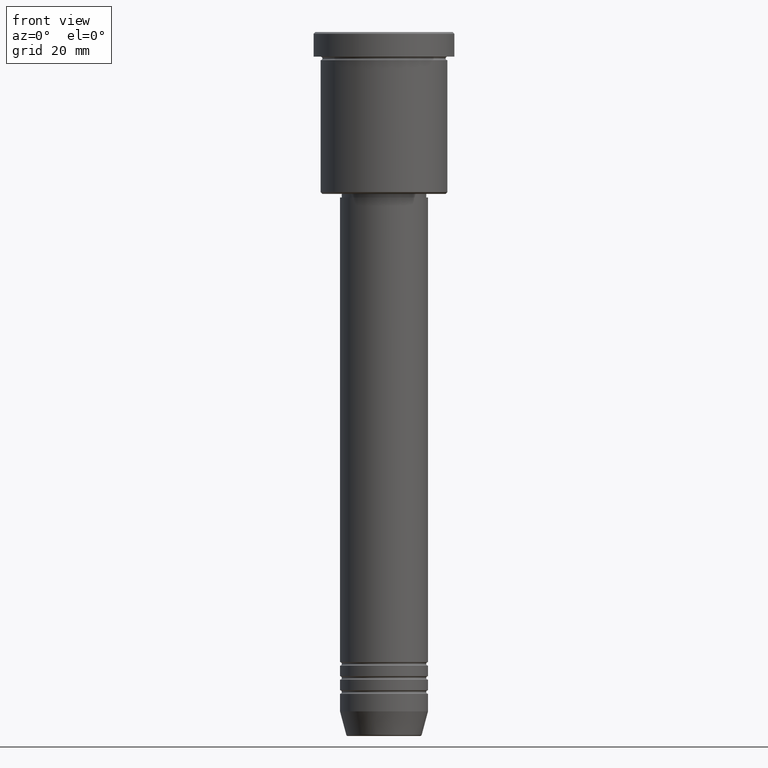
[diagram: clean part render]
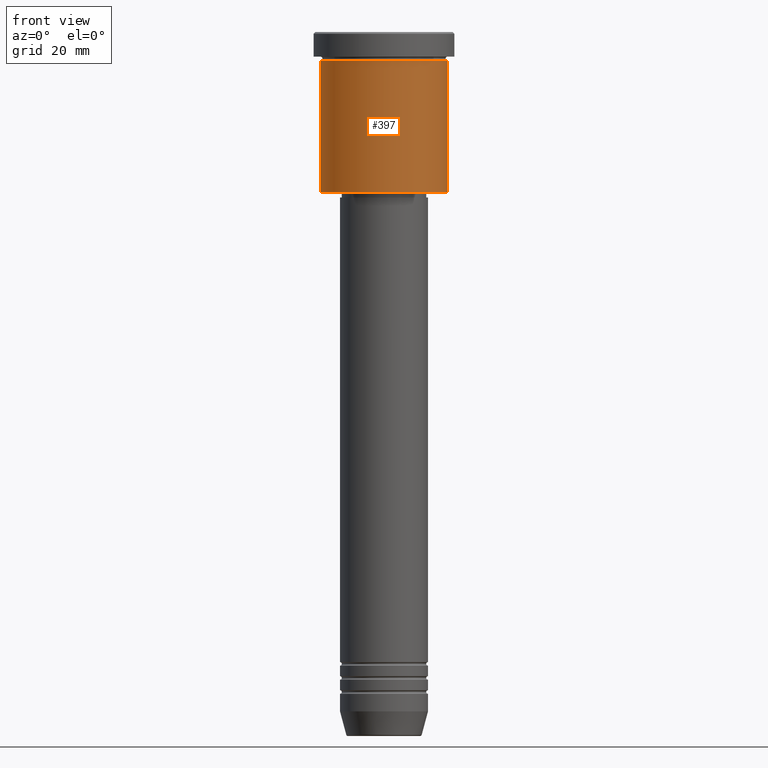
[diagram: same view with one face highlighted and labeled with its STEP entity id]
A machine part, front view. The second image highlights one B-rep face of the part: STEP entity #397.
In plain terms, the highlighted cylindrical surface (partial cylindrical patch) has radius 18 mm, axis along (-0, -0, 1).
Its self-contained STEP definition (entity closure, byte-faithful):
#25 = DIRECTION ( 'NONE',  ( -0.000000000000000000, -0.000000000000000000, 1.000000000000000000 ) ) ;
#33 = VECTOR ( 'NONE', #858, 1000.000000000000000 ) ;
#64 = EDGE_CURVE ( 'NONE', #933, #93, #1017, .T. ) ;
#72 = DIRECTION ( 'NONE',  ( 1.000000000000000000, 0.000000000000000000, 0.000000000000000000 ) ) ;
#74 = CARTESIAN_POINT ( 'NONE',  ( -18.00000000000000000, 2.204364238465235428E-15, 0.000000000000000000 ) ) ;
#93 = VERTEX_POINT ( 'NONE', #1138 ) ;
#176 = ORIENTED_EDGE ( 'NONE', *, *, #185, .T. ) ;
#181 = ORIENTED_EDGE ( 'NONE', *, *, #64, .T. ) ;
#185 = EDGE_CURVE ( 'NONE', #903, #933, #1024, .T. ) ;
#268 = ORIENTED_EDGE ( 'NONE', *, *, #622, .F. ) ;
#284 = CARTESIAN_POINT ( 'NONE',  ( 0.000000000000000000, 0.000000000000000000, 0.000000000000000000 ) ) ;
#397 = ADVANCED_FACE ( 'NONE', ( #742 ), #838, .T. ) ;
#442 = DIRECTION ( 'NONE',  ( -1.000000000000000000, 0.000000000000000000, 0.000000000000000000 ) ) ;
#504 = CARTESIAN_POINT ( 'NONE',  ( 18.00000000000000000, 0.000000000000000000, 0.000000000000000000 ) ) ;
#508 = AXIS2_PLACEMENT_3D ( 'NONE', #615, #1175, #442 ) ;
#535 = DIRECTION ( 'NONE',  ( -0.000000000000000000, -0.000000000000000000, 1.000000000000000000 ) ) ;
#545 = EDGE_LOOP ( 'NONE', ( #268, #176, #181, #917 ) ) ;
#606 = VERTEX_POINT ( 'NONE', #1145 ) ;
#615 = CARTESIAN_POINT ( 'NONE',  ( 0.000000000000000000, 0.000000000000000000, -45.50000000000001421 ) ) ;
#622 = EDGE_CURVE ( 'NONE', #903, #606, #1149, .T. ) ;
#660 = CARTESIAN_POINT ( 'NONE',  ( 18.00000000000000000, 0.000000000000000000, -45.50000000000001421 ) ) ;
#742 = FACE_OUTER_BOUND ( 'NONE', #545, .T. ) ;
#792 = CIRCLE ( 'NONE', #1108, 18.00000000000000000 ) ;
#838 = CYLINDRICAL_SURFACE ( 'NONE', #890, 18.00000000000000000 ) ;
#858 = DIRECTION ( 'NONE',  ( -0.000000000000000000, -0.000000000000000000, 1.000000000000000000 ) ) ;
#890 = AXIS2_PLACEMENT_3D ( 'NONE', #284, #25, #1086 ) ;
#892 = VECTOR ( 'NONE', #535, 1000.000000000000000 ) ;
#903 = VERTEX_POINT ( 'NONE', #1038 ) ;
#917 = ORIENTED_EDGE ( 'NONE', *, *, #1087, .F. ) ;
#933 = VERTEX_POINT ( 'NONE', #660 ) ;
#973 = DIRECTION ( 'NONE',  ( -0.000000000000000000, -0.000000000000000000, 1.000000000000000000 ) ) ;
#1017 = LINE ( 'NONE', #504, #33 ) ;
#1024 = CIRCLE ( 'NONE', #508, 18.00000000000000000 ) ;
#1038 = CARTESIAN_POINT ( 'NONE',  ( -18.00000000000000000, 2.204364238465235428E-15, -45.50000000000001421 ) ) ;
#1058 = CARTESIAN_POINT ( 'NONE',  ( 0.000000000000000000, 0.000000000000000000, -7.999999999999996447 ) ) ;
#1086 = DIRECTION ( 'NONE',  ( 1.000000000000000000, 0.000000000000000000, 0.000000000000000000 ) ) ;
#1087 = EDGE_CURVE ( 'NONE', #606, #93, #792, .T. ) ;
#1108 = AXIS2_PLACEMENT_3D ( 'NONE', #1058, #973, #72 ) ;
#1138 = CARTESIAN_POINT ( 'NONE',  ( 18.00000000000000000, 0.000000000000000000, -7.999999999999996447 ) ) ;
#1145 = CARTESIAN_POINT ( 'NONE',  ( -18.00000000000000000, 2.204364238465235428E-15, -7.999999999999996447 ) ) ;
#1149 = LINE ( 'NONE', #74, #892 ) ;
#1175 = DIRECTION ( 'NONE',  ( -0.000000000000000000, -0.000000000000000000, 1.000000000000000000 ) ) ;